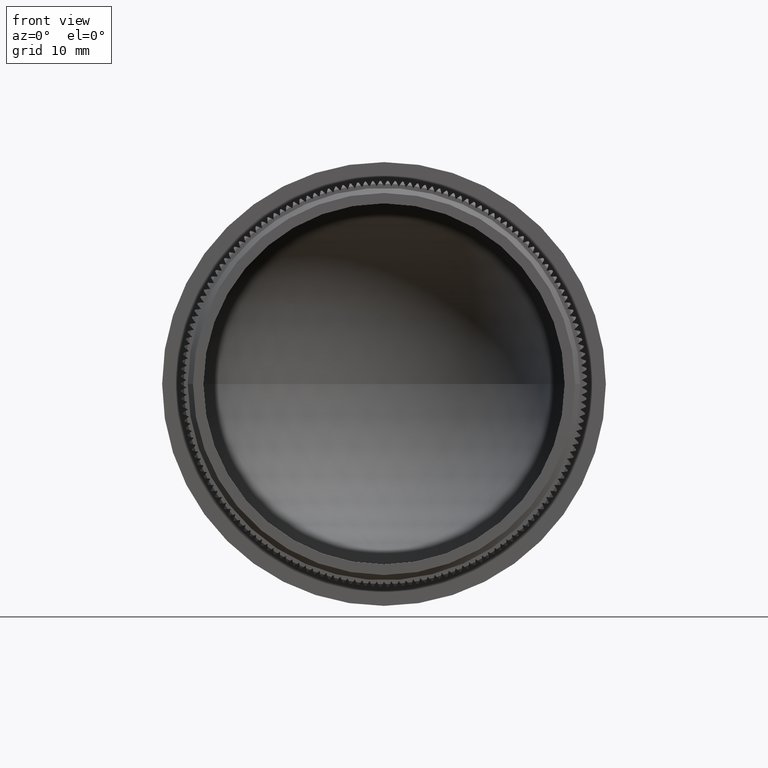
[diagram: clean part render]
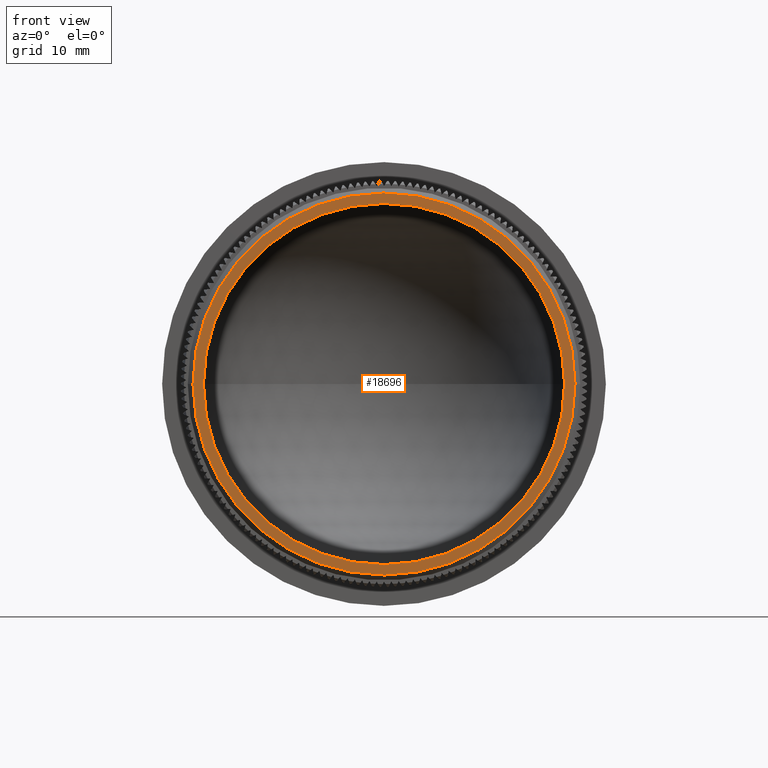
[diagram: same view with one face highlighted and labeled with its STEP entity id]
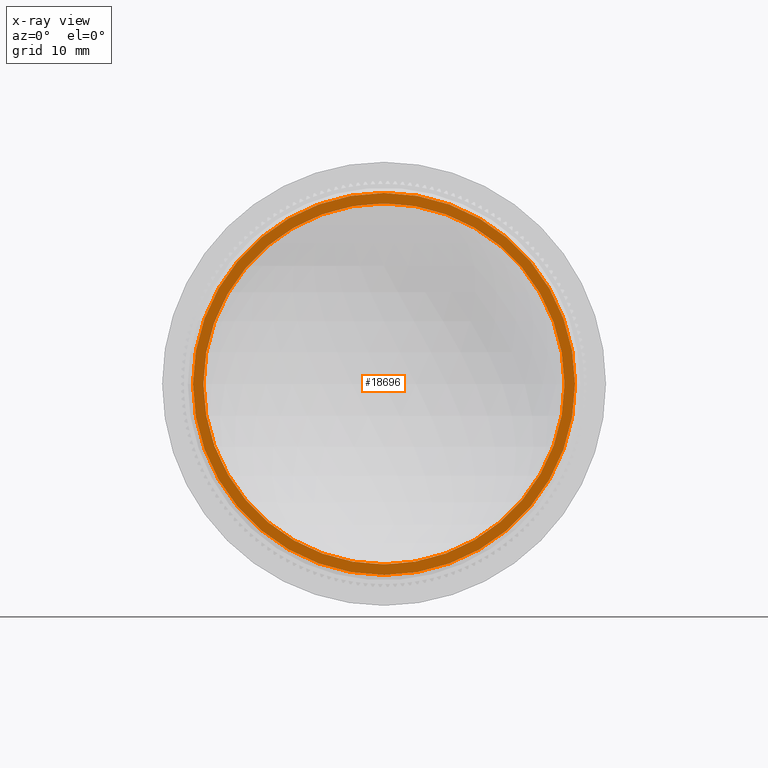
[diagram: x-ray of the same camera — body ghosted, the highlighted face saturated]
A machine part, front view. The second image highlights one B-rep face of the part: STEP entity #18696.
The next image is the same camera in x-ray: the body ghosted, the highlighted face saturated — about 0% of this face is hidden behind the body in this view.
In plain terms, the highlighted planar face has unit normal (-0, -1, 0).
Its self-contained STEP definition (entity closure, byte-faithful):
#608 = EDGE_LOOP ( 'NONE', ( #22113, #18920 ) ) ;
#638 = DIRECTION ( 'NONE',  ( 1.000000000000000000, -1.388827867340710000E-015, 0.0000000000000000000 ) ) ;
#1233 = DIRECTION ( 'NONE',  ( 1.000000000000000000, -1.388827867340710200E-015, 0.0000000000000000000 ) ) ;
#3645 = VERTEX_POINT ( 'NONE', #24270 ) ;
#5299 = DIRECTION ( 'NONE',  ( -1.388827867340710000E-015, -1.000000000000000000, -0.0000000000000000000 ) ) ;
#6328 = CIRCLE ( 'NONE', #29530, 18.25000000000003200 ) ;
#6530 = PLANE ( 'NONE',  #11088 ) ;
#6740 = CARTESIAN_POINT ( 'NONE',  ( -4.472025732837082000E-014, 2.458917930677003500E-014, 0.0000000000000000000 ) ) ;
#6782 = CARTESIAN_POINT ( 'NONE',  ( 18.75000000000000000, -1.451343205868337500E-015, 0.0000000000000000000 ) ) ;
#8958 = CIRCLE ( 'NONE', #29465, 18.25000000000003200 ) ;
#9056 = DIRECTION ( 'NONE',  ( -1.388827867340710000E-015, -1.000000000000000000, -0.0000000000000000000 ) ) ;
#11088 = AXIS2_PLACEMENT_3D ( 'NONE', #6782, #18281, #638 ) ;
#11906 = VERTEX_POINT ( 'NONE', #17164 ) ;
#11986 = ORIENTED_EDGE ( 'NONE', *, *, #18842, .T. ) ;
#12874 = ORIENTED_EDGE ( 'NONE', *, *, #30307, .T. ) ;
#15700 = DIRECTION ( 'NONE',  ( 1.000000000000000000, -1.388827867340710000E-015, 0.0000000000000000000 ) ) ;
#17164 = CARTESIAN_POINT ( 'NONE',  ( 18.24999999999998900, -7.569292721979674300E-016, 2.265596578422608500E-015 ) ) ;
#17238 = AXIS2_PLACEMENT_3D ( 'NONE', #35874, #21306, #15700 ) ;
#17310 = DIRECTION ( 'NONE',  ( 1.000000000000000000, -1.388827867340710200E-015, 0.0000000000000000000 ) ) ;
#18281 = DIRECTION ( 'NONE',  ( -1.388827867340710000E-015, -1.000000000000000000, 0.0000000000000000000 ) ) ;
#18696 = ADVANCED_FACE ( 'NONE', ( #33453, #32514 ), #6530, .T. ) ;
#18842 = EDGE_CURVE ( 'NONE', #11906, #20522, #6328, .T. ) ;
#18920 = ORIENTED_EDGE ( 'NONE', *, *, #35315, .F. ) ;
#20522 = VERTEX_POINT ( 'NONE', #37298 ) ;
#21306 = DIRECTION ( 'NONE',  ( -1.388827867340710000E-015, -1.000000000000000000, -0.0000000000000000000 ) ) ;
#22113 = ORIENTED_EDGE ( 'NONE', *, *, #35262, .F. ) ;
#22274 = CARTESIAN_POINT ( 'NONE',  ( -17.25000000000009600, 4.477396242334899600E-014, 2.112515728529191600E-015 ) ) ;
#22360 = DIRECTION ( 'NONE',  ( 1.000000000000000000, -1.388827867340710000E-015, 0.0000000000000000000 ) ) ;
#24270 = CARTESIAN_POINT ( 'NONE',  ( 17.25000000000000400, -3.140598999905631700E-015, 0.0000000000000000000 ) ) ;
#24338 = AXIS2_PLACEMENT_3D ( 'NONE', #27011, #9056, #22360 ) ;
#27011 = CARTESIAN_POINT ( 'NONE',  ( -4.472025732837082600E-014, 2.081668171172168500E-014, 0.0000000000000000000 ) ) ;
#27290 = DIRECTION ( 'NONE',  ( -1.388827867340710000E-015, -1.000000000000000000, -0.0000000000000000000 ) ) ;
#29465 = AXIS2_PLACEMENT_3D ( 'NONE', #6740, #27290, #1233 ) ;
#29530 = AXIS2_PLACEMENT_3D ( 'NONE', #34565, #5299, #17310 ) ;
#30307 = EDGE_CURVE ( 'NONE', #20522, #11906, #8958, .T. ) ;
#31915 = VERTEX_POINT ( 'NONE', #22274 ) ;
#32468 = EDGE_LOOP ( 'NONE', ( #12874, #11986 ) ) ;
#32514 = FACE_BOUND ( 'NONE', #608, .T. ) ;
#33453 = FACE_OUTER_BOUND ( 'NONE', #32468, .T. ) ;
#34400 = CIRCLE ( 'NONE', #24338, 17.25000000000005000 ) ;
#34565 = CARTESIAN_POINT ( 'NONE',  ( -4.472025732837082000E-014, 2.458917930677003500E-014, 0.0000000000000000000 ) ) ;
#35262 = EDGE_CURVE ( 'NONE', #3645, #31915, #35758, .T. ) ;
#35315 = EDGE_CURVE ( 'NONE', #31915, #3645, #34400, .T. ) ;
#35758 = CIRCLE ( 'NONE', #17238, 17.25000000000005000 ) ;
#35874 = CARTESIAN_POINT ( 'NONE',  ( -4.472025732837082600E-014, 2.081668171172168500E-014, 0.0000000000000000000 ) ) ;
#37298 = CARTESIAN_POINT ( 'NONE',  ( -18.25000000000007800, 4.993528788573803800E-014, 0.0000000000000000000 ) ) ;